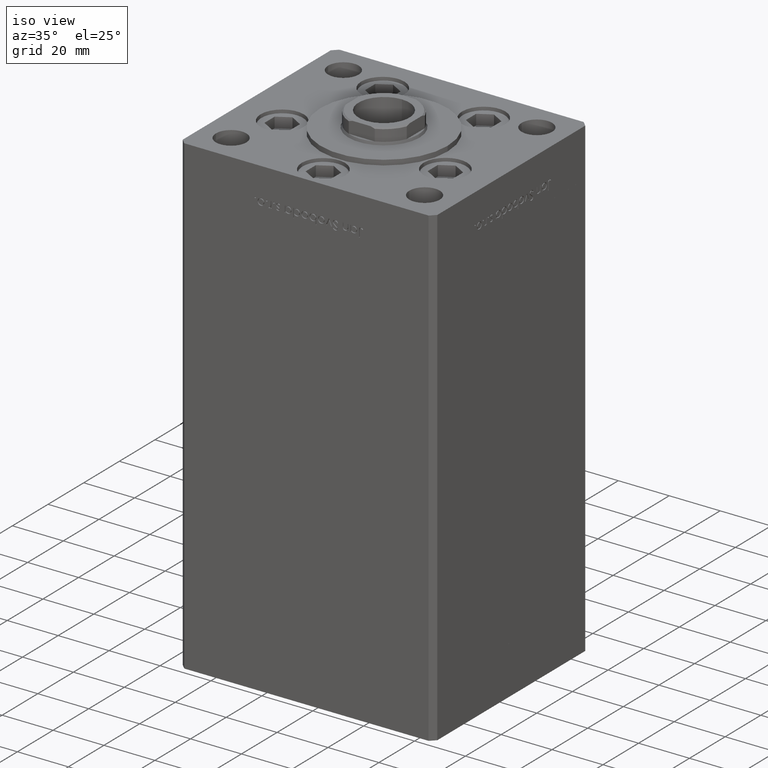
[diagram: clean part render]
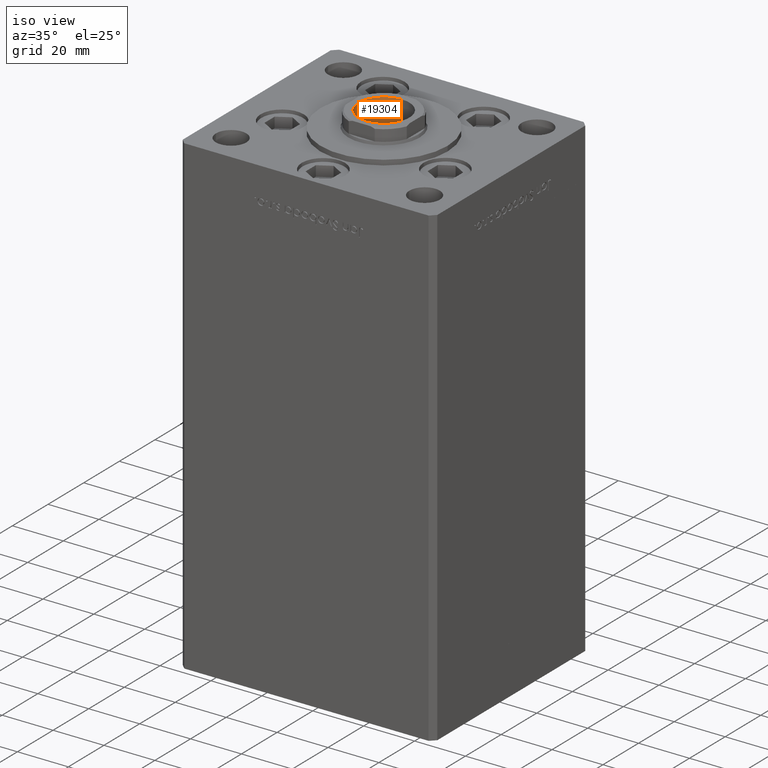
[diagram: same view with one face highlighted and labeled with its STEP entity id]
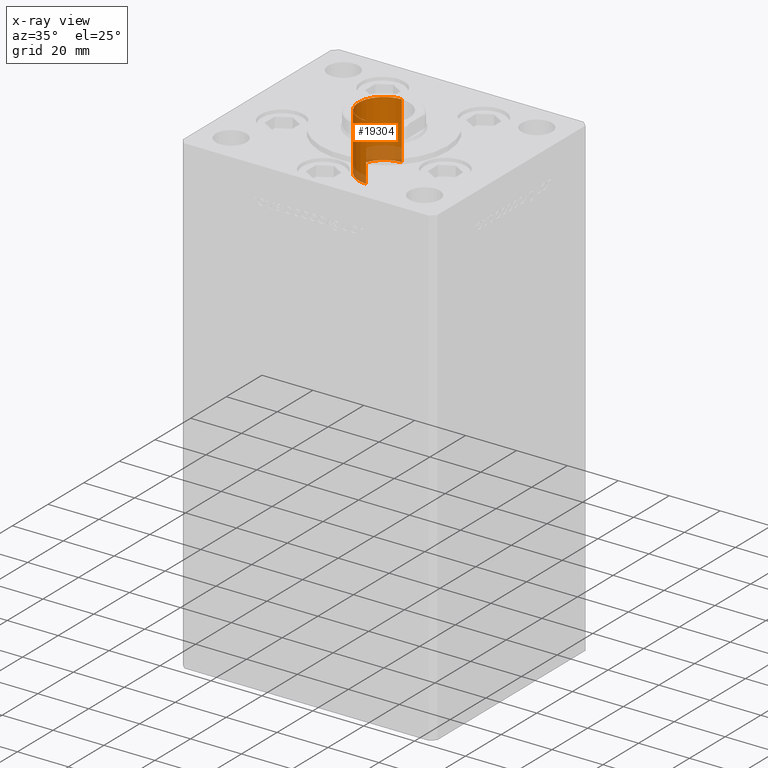
[diagram: x-ray of the same camera — body ghosted, the highlighted face saturated]
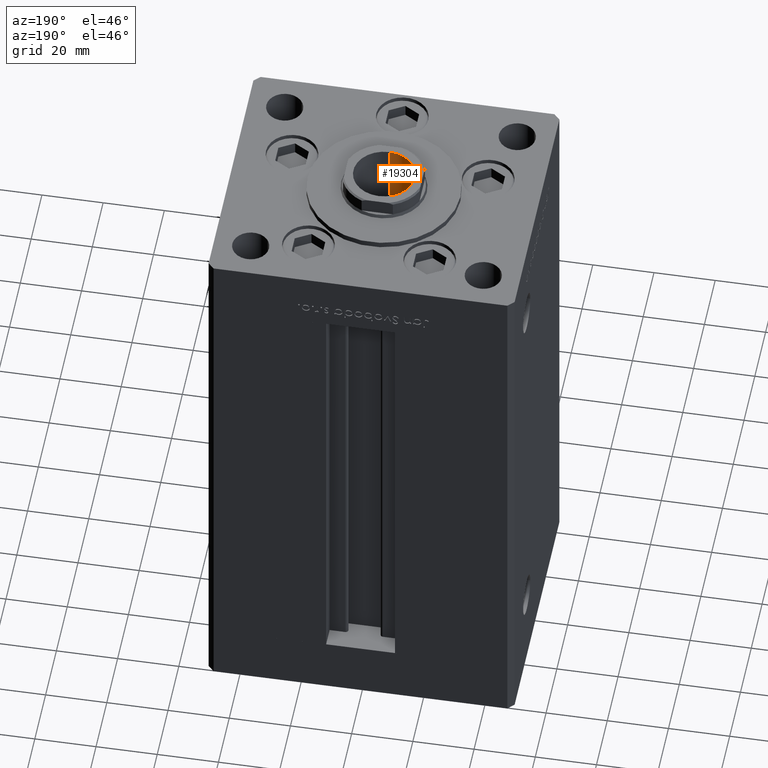
[diagram: same view with one face highlighted and labeled with its STEP entity id]
A machine part, iso view. The second image highlights one B-rep face of the part: STEP entity #19304.
The next image is the same camera in x-ray: the body ghosted, the highlighted face saturated — about 19% of this face is hidden behind the body in this view.
A second angle (auxiliary view) of the same face is appended — the face is thin or edge-on in the first view.
In plain terms, the highlighted cylindrical surface (edge-blend (fillet) strip) has radius 10 mm, axis along (-0, -0, 1).
Its self-contained STEP definition (entity closure, byte-faithful):
#8 = ORIENTED_EDGE ( 'NONE', *, *, #19255, .F. ) ;
#1294 = AXIS2_PLACEMENT_3D ( 'NONE', #50750, #5631, #21642 ) ;
#4004 = FACE_OUTER_BOUND ( 'NONE', #14885, .T. ) ;
#4533 = DIRECTION ( 'NONE',  ( 0.000000000000000000, 0.000000000000000000, -1.000000000000000000 ) ) ;
#4657 = VECTOR ( 'NONE', #16547, 1000.000000000000000 ) ;
#5055 = CARTESIAN_POINT ( 'NONE',  ( -6.123233995736764310E-16, 0.000000000000000000, 0.000000000000000000 ) ) ;
#5559 = CARTESIAN_POINT ( 'NONE',  ( 0.000000000000000000, 0.000000000000000000, -9.999999999999996447 ) ) ;
#5631 = DIRECTION ( 'NONE',  ( 1.000000000000000000, -0.000000000000000000, -0.000000000000000000 ) ) ;
#6003 = CARTESIAN_POINT ( 'NONE',  ( -6.123233995736764310E-16, 0.000000000000000000, -9.999999999999998224 ) ) ;
#7241 = CARTESIAN_POINT ( 'NONE',  ( -6.123233995736764310E-16, 1.224646799147353059E-15, 9.999999999999998224 ) ) ;
#8015 = AXIS2_PLACEMENT_3D ( 'NONE', #35000, #20015, #19495 ) ;
#8160 = CARTESIAN_POINT ( 'NONE',  ( 0.000000000000000000, 1.224646799147352862E-15, 9.999999999999996447 ) ) ;
#12936 = DIRECTION ( 'NONE',  ( 1.000000000000000000, -0.000000000000000000, -0.000000000000000000 ) ) ;
#13690 = DIRECTION ( 'NONE',  ( 1.000000000000000000, -0.000000000000000000, -0.000000000000000000 ) ) ;
#14712 = CIRCLE ( 'NONE', #1294, 9.999999999999994671 ) ;
#14885 = EDGE_LOOP ( 'NONE', ( #40099, #8, #27583, #45402 ) ) ;
#16547 = DIRECTION ( 'NONE',  ( 1.000000000000000000, -0.000000000000000000, -0.000000000000000000 ) ) ;
#17972 = CIRCLE ( 'NONE', #42271, 9.999999999999998224 ) ;
#18436 = CARTESIAN_POINT ( 'NONE',  ( -22.39000000000000057, 0.000000000000000000, -9.999999999999994671 ) ) ;
#18838 = VERTEX_POINT ( 'NONE', #6003 ) ;
#19255 = EDGE_CURVE ( 'NONE', #21615, #32048, #14712, .T. ) ;
#19304 = ADVANCED_FACE ( 'NONE', ( #4004 ), #31312, .F. ) ;
#19495 = DIRECTION ( 'NONE',  ( 0.000000000000000000, 0.000000000000000000, -1.000000000000000000 ) ) ;
#20015 = DIRECTION ( 'NONE',  ( 1.000000000000000000, -0.000000000000000000, -0.000000000000000000 ) ) ;
#21615 = VERTEX_POINT ( 'NONE', #18436 ) ;
#21642 = DIRECTION ( 'NONE',  ( 0.000000000000000000, 0.000000000000000000, -1.000000000000000000 ) ) ;
#24819 = VERTEX_POINT ( 'NONE', #7241 ) ;
#27583 = ORIENTED_EDGE ( 'NONE', *, *, #35898, .T. ) ;
#28356 = LINE ( 'NONE', #8160, #4657 ) ;
#29910 = EDGE_CURVE ( 'NONE', #18838, #24819, #17972, .T. ) ;
#31312 = CYLINDRICAL_SURFACE ( 'NONE', #8015, 9.999999999999996447 ) ;
#32048 = VERTEX_POINT ( 'NONE', #36830 ) ;
#33903 = LINE ( 'NONE', #5559, #41485 ) ;
#35000 = CARTESIAN_POINT ( 'NONE',  ( 0.000000000000000000, 0.000000000000000000, 0.000000000000000000 ) ) ;
#35898 = EDGE_CURVE ( 'NONE', #21615, #18838, #33903, .T. ) ;
#36830 = CARTESIAN_POINT ( 'NONE',  ( -22.39000000000000057, 1.224646799147352665E-15, 9.999999999999994671 ) ) ;
#38073 = EDGE_CURVE ( 'NONE', #32048, #24819, #28356, .T. ) ;
#40099 = ORIENTED_EDGE ( 'NONE', *, *, #38073, .F. ) ;
#41485 = VECTOR ( 'NONE', #13690, 1000.000000000000000 ) ;
#42271 = AXIS2_PLACEMENT_3D ( 'NONE', #5055, #12936, #4533 ) ;
#45402 = ORIENTED_EDGE ( 'NONE', *, *, #29910, .T. ) ;
#50750 = CARTESIAN_POINT ( 'NONE',  ( -22.39000000000000057, 0.000000000000000000, 0.000000000000000000 ) ) ;